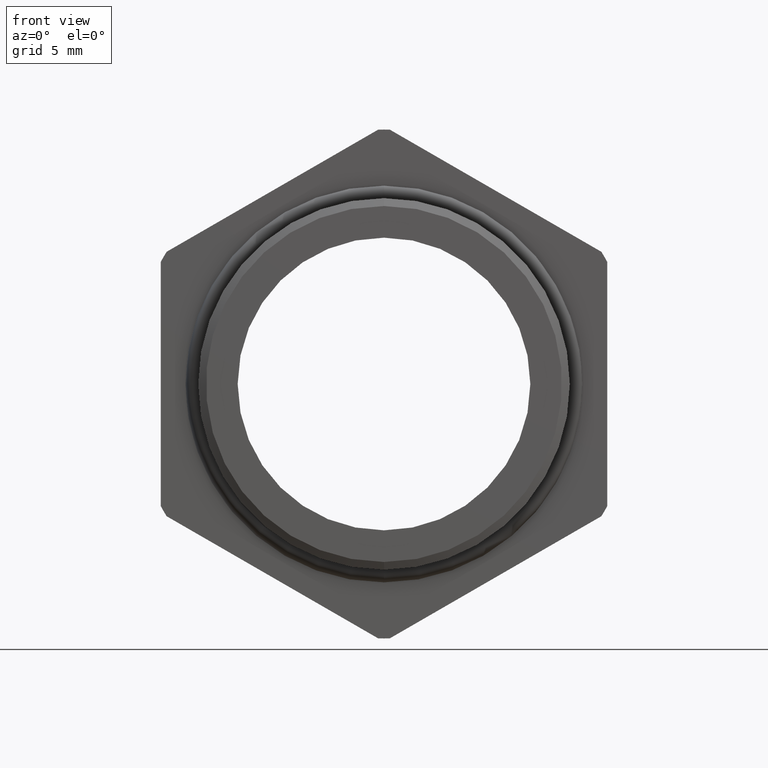
[diagram: clean part render]
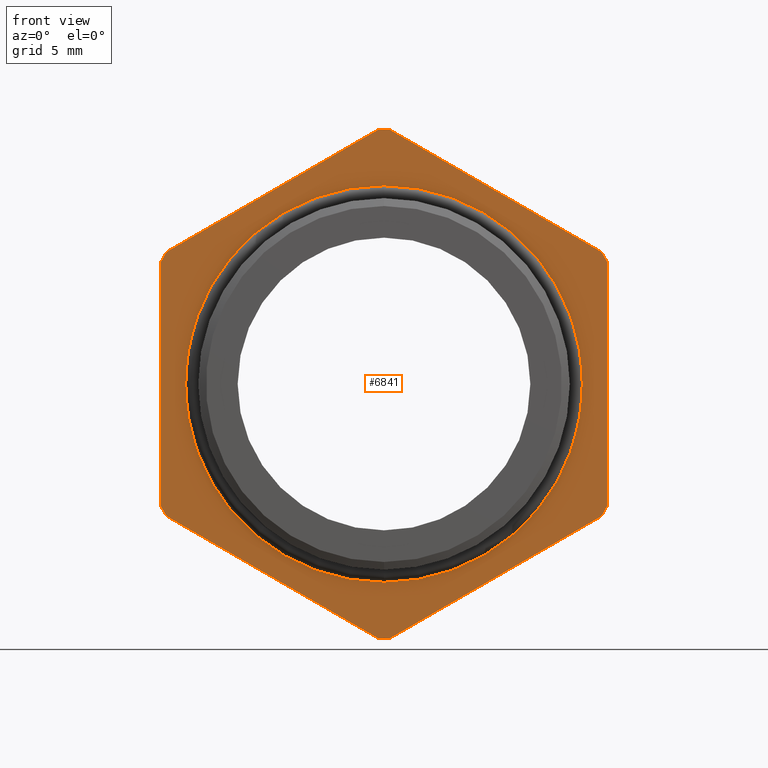
[diagram: same view with one face highlighted and labeled with its STEP entity id]
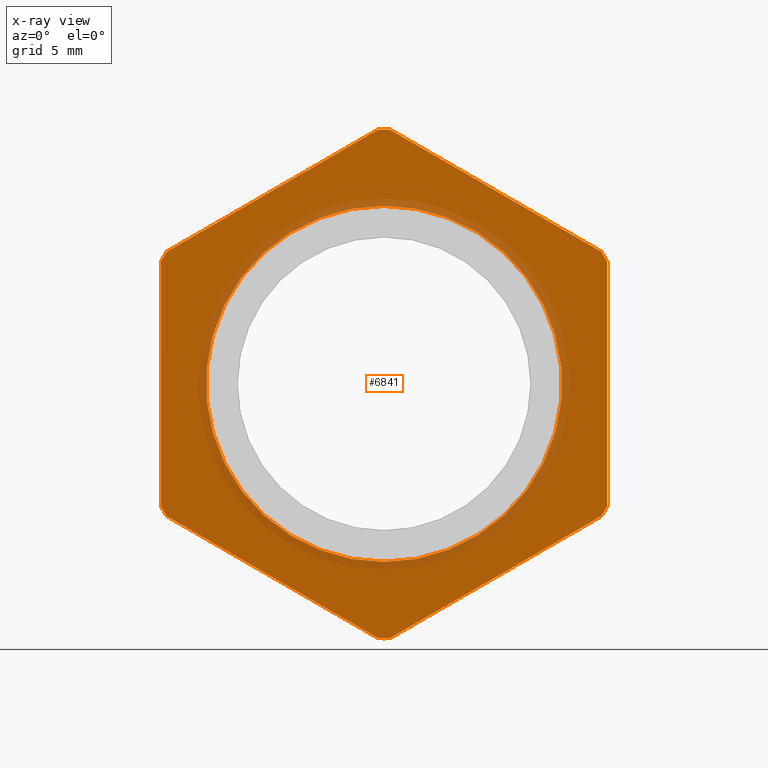
[diagram: x-ray of the same camera — body ghosted, the highlighted face saturated]
A machine part, front view. The second image highlights one B-rep face of the part: STEP entity #6841.
The next image is the same camera in x-ray: the body ghosted, the highlighted face saturated — about 12% of this face is hidden behind the body in this view.
In plain terms, the highlighted planar face has unit normal (0, -1, -0).
Its self-contained STEP definition (entity closure, byte-faithful):
#74 = VERTEX_POINT ( 'NONE', #1339 ) ;
#75 = EDGE_CURVE ( 'NONE', #6470, #74, #1400, .T. ) ;
#82 = VERTEX_POINT ( 'NONE', #1381 ) ;
#88 = VERTEX_POINT ( 'NONE', #1377 ) ;
#89 = EDGE_CURVE ( 'NONE', #6487, #88, #1371, .T. ) ;
#101 = VERTEX_POINT ( 'NONE', #1412 ) ;
#102 = EDGE_CURVE ( 'NONE', #82, #101, #1405, .T. ) ;
#117 = EDGE_CURVE ( 'NONE', #6682, #82, #1487, .T. ) ;
#124 = EDGE_CURVE ( 'NONE', #88, #6470, #1476, .T. ) ;
#654 = EDGE_CURVE ( 'NONE', #706, #707, #2544, .T. ) ;
#706 = VERTEX_POINT ( 'NONE', #2636 ) ;
#707 = VERTEX_POINT ( 'NONE', #2630 ) ;
#840 = EDGE_CURVE ( 'NONE', #101, #6487, #2840, .T. ) ;
#1339 = CARTESIAN_POINT ( 'NONE',  ( -0.3847399997329630200, 0.2275548905829479800, -0.2339769702459614800 ) ) ;
#1368 = DIRECTION ( 'NONE',  ( -0.0000000000000000000, -1.000000000000000000, -0.0000000000000000000 ) ) ;
#1369 = CARTESIAN_POINT ( 'NONE',  ( 0.0000000000000000000, 0.2275548905829479800, 0.0000000000000000000 ) ) ;
#1370 = AXIS2_PLACEMENT_3D ( 'NONE', #1369, #1368, #1429 ) ;
#1371 = CIRCLE ( 'NONE', #1370, 0.4502999999999999800 ) ;
#1377 = CARTESIAN_POINT ( 'NONE',  ( -0.3949999999999999600, 0.2275548905829479800, 0.2162061284977833100 ) ) ;
#1381 = CARTESIAN_POINT ( 'NONE',  ( 0.01026000026703743400, 0.2275548905829479800, 0.4501830987437449600 ) ) ;
#1396 = DIRECTION ( 'NONE',  ( 0.0000000000000000000, 0.0000000000000000000, -1.000000000000000000 ) ) ;
#1397 = DIRECTION ( 'NONE',  ( -0.0000000000000000000, -1.000000000000000000, -0.0000000000000000000 ) ) ;
#1398 = CARTESIAN_POINT ( 'NONE',  ( 0.0000000000000000000, 0.2275548905829479800, 0.0000000000000000000 ) ) ;
#1399 = AXIS2_PLACEMENT_3D ( 'NONE', #1398, #1397, #1396 ) ;
#1400 = CIRCLE ( 'NONE', #1399, 0.4502999999999999800 ) ;
#1402 = DIRECTION ( 'NONE',  ( -0.0000000000000000000, -1.000000000000000000, -0.0000000000000000000 ) ) ;
#1403 = CARTESIAN_POINT ( 'NONE',  ( 0.0000000000000000000, 0.2275548905829479800, 0.0000000000000000000 ) ) ;
#1404 = AXIS2_PLACEMENT_3D ( 'NONE', #1403, #1402, #1458 ) ;
#1405 = CIRCLE ( 'NONE', #1404, 0.4502999999999999800 ) ;
#1412 = CARTESIAN_POINT ( 'NONE',  ( -0.01026000026703719400, 0.2275548905829479800, 0.4501830987437449000 ) ) ;
#1429 = DIRECTION ( 'NONE',  ( 0.0000000000000000000, 0.0000000000000000000, -1.000000000000000000 ) ) ;
#1458 = DIRECTION ( 'NONE',  ( 0.0000000000000000000, 0.0000000000000000000, -1.000000000000000000 ) ) ;
#1467 = DIRECTION ( 'NONE',  ( 0.0000000000000000000, 0.0000000000000000000, -1.000000000000000000 ) ) ;
#1468 = VECTOR ( 'NONE', #1467, 39.37007874015748100 ) ;
#1469 = CARTESIAN_POINT ( 'NONE',  ( -0.3949999999999999600, 0.2275548905829479800, 0.0000000000000000000 ) ) ;
#1476 = LINE ( 'NONE', #1469, #1468 ) ;
#1484 = DIRECTION ( 'NONE',  ( -0.8660254037844386000, 0.0000000000000000000, 0.5000000000000002200 ) ) ;
#1485 = VECTOR ( 'NONE', #1484, 39.37007874015747400 ) ;
#1486 = CARTESIAN_POINT ( 'NONE',  ( 0.4337500000000000200, 0.2275548905829479800, 0.2056810333988042200 ) ) ;
#1487 = LINE ( 'NONE', #1486, #1485 ) ;
#1812 = EDGE_CURVE ( 'NONE', #74, #6740, #3591, .T. ) ;
#2540 = DIRECTION ( 'NONE',  ( 0.0000000000000000000, 0.0000000000000000000, -1.000000000000000000 ) ) ;
#2541 = DIRECTION ( 'NONE',  ( -0.0000000000000000000, -1.000000000000000000, -0.0000000000000000000 ) ) ;
#2542 = CARTESIAN_POINT ( 'NONE',  ( 0.0000000000000000000, 0.2275548905829479800, 0.0000000000000000000 ) ) ;
#2543 = AXIS2_PLACEMENT_3D ( 'NONE', #2542, #2541, #2540 ) ;
#2544 = CIRCLE ( 'NONE', #2543, 0.3150000000000000000 ) ;
#2630 = CARTESIAN_POINT ( 'NONE',  ( 3.857637417314162700E-017, 0.2275548905829479800, 0.3150000000000000000 ) ) ;
#2636 = CARTESIAN_POINT ( 'NONE',  ( 0.0000000000000000000, 0.2275548905829479800, -0.3150000000000000000 ) ) ;
#2840 = LINE ( 'NONE', #2899, #2898 ) ;
#2897 = DIRECTION ( 'NONE',  ( -0.8660254037844386000, 0.0000000000000000000, -0.4999999999999998300 ) ) ;
#2898 = VECTOR ( 'NONE', #2897, 39.37007874015748900 ) ;
#2899 = CARTESIAN_POINT ( 'NONE',  ( 0.03875000000000002700, 0.2275548905829479800, 0.4784790355909024400 ) ) ;
#3590 = CARTESIAN_POINT ( 'NONE',  ( 0.03874999999999989600, 0.2275548905829479800, -0.4784790355909022700 ) ) ;
#3591 = LINE ( 'NONE', #3590, #3631 ) ;
#3613 = CIRCLE ( 'NONE', #3645, 0.4502999999999999800 ) ;
#3630 = DIRECTION ( 'NONE',  ( 0.8660254037844386000, 0.0000000000000000000, -0.5000000000000002200 ) ) ;
#3631 = VECTOR ( 'NONE', #3630, 39.37007874015747400 ) ;
#3642 = DIRECTION ( 'NONE',  ( 0.0000000000000000000, 0.0000000000000000000, -1.000000000000000000 ) ) ;
#3643 = DIRECTION ( 'NONE',  ( -0.0000000000000000000, -1.000000000000000000, -0.0000000000000000000 ) ) ;
#3644 = CARTESIAN_POINT ( 'NONE',  ( 0.0000000000000000000, 0.2275548905829479800, 0.0000000000000000000 ) ) ;
#3645 = AXIS2_PLACEMENT_3D ( 'NONE', #3644, #3643, #3642 ) ;
#3659 = DIRECTION ( 'NONE',  ( -2.994746533912406200E-016, 0.0000000000000000000, 1.000000000000000000 ) ) ;
#3660 = VECTOR ( 'NONE', #3659, 39.37007874015748100 ) ;
#3661 = CARTESIAN_POINT ( 'NONE',  ( 0.3949999999999999600, 0.2275548905829479800, 2.395797227129924000E-017 ) ) ;
#3662 = LINE ( 'NONE', #3661, #3660 ) ;
#3674 = CARTESIAN_POINT ( 'NONE',  ( -0.3949999999999999600, 0.2275548905829479800, -0.2162061284977833100 ) ) ;
#3699 = CARTESIAN_POINT ( 'NONE',  ( -0.3847399997329628000, 0.2275548905829479800, 0.2339769702459618100 ) ) ;
#3707 = DIRECTION ( 'NONE',  ( 0.0000000000000000000, 0.0000000000000000000, -1.000000000000000000 ) ) ;
#3708 = DIRECTION ( 'NONE',  ( -0.0000000000000000000, -1.000000000000000000, -0.0000000000000000000 ) ) ;
#3709 = CARTESIAN_POINT ( 'NONE',  ( 0.0000000000000000000, 0.2275548905829479800, 0.0000000000000000000 ) ) ;
#3710 = AXIS2_PLACEMENT_3D ( 'NONE', #3709, #3708, #3707 ) ;
#3715 = CIRCLE ( 'NONE', #3710, 0.4502999999999999800 ) ;
#3751 = CARTESIAN_POINT ( 'NONE',  ( 0.01026000026703718400, 0.2275548905829479800, -0.4501830987437449000 ) ) ;
#3809 = DIRECTION ( 'NONE',  ( 0.8660254037844386000, 0.0000000000000000000, 0.4999999999999998300 ) ) ;
#3810 = VECTOR ( 'NONE', #3809, 39.37007874015748900 ) ;
#3811 = CARTESIAN_POINT ( 'NONE',  ( 0.4337499999999999700, 0.2275548905829479800, -0.2056810333988043100 ) ) ;
#3812 = LINE ( 'NONE', #3811, #3810 ) ;
#4050 = CARTESIAN_POINT ( 'NONE',  ( 0.0000000000000000000, 0.2275548905829479800, -0.4502999999999999800 ) ) ;
#4076 = CARTESIAN_POINT ( 'NONE',  ( 0.3949999999999999100, 0.2275548905829479800, 0.2162061284977834200 ) ) ;
#4077 = CARTESIAN_POINT ( 'NONE',  ( 0.3847399997329628000, 0.2275548905829479800, -0.2339769702459618100 ) ) ;
#4084 = CARTESIAN_POINT ( 'NONE',  ( 0.3950000000000000200, 0.2275548905829479800, -0.2162061284977832000 ) ) ;
#4090 = CARTESIAN_POINT ( 'NONE',  ( 0.3847399997329628600, 0.2275548905829479800, 0.2339769702459617900 ) ) ;
#4111 = DIRECTION ( 'NONE',  ( 0.0000000000000000000, 0.0000000000000000000, -1.000000000000000000 ) ) ;
#4112 = DIRECTION ( 'NONE',  ( -0.0000000000000000000, -1.000000000000000000, -0.0000000000000000000 ) ) ;
#4113 = CARTESIAN_POINT ( 'NONE',  ( 0.0000000000000000000, 0.2275548905829479800, 0.0000000000000000000 ) ) ;
#4114 = AXIS2_PLACEMENT_3D ( 'NONE', #4113, #4112, #4111 ) ;
#4115 = CIRCLE ( 'NONE', #4114, 0.4502999999999999800 ) ;
#4158 = CARTESIAN_POINT ( 'NONE',  ( 0.0000000000000000000, 0.2275548905829479800, 0.0000000000000000000 ) ) ;
#4159 = AXIS2_PLACEMENT_3D ( 'NONE', #4158, #4222, #4221 ) ;
#4160 = CIRCLE ( 'NONE', #4159, 0.4502999999999999800 ) ;
#4220 = CARTESIAN_POINT ( 'NONE',  ( -0.01026000026703716000, 0.2275548905829479800, -0.4501830987437449600 ) ) ;
#4221 = DIRECTION ( 'NONE',  ( 0.0000000000000000000, 0.0000000000000000000, -1.000000000000000000 ) ) ;
#4222 = DIRECTION ( 'NONE',  ( -0.0000000000000000000, -1.000000000000000000, -0.0000000000000000000 ) ) ;
#4386 = DIRECTION ( 'NONE',  ( 0.0000000000000000000, 0.0000000000000000000, -1.000000000000000000 ) ) ;
#4387 = DIRECTION ( 'NONE',  ( -0.0000000000000000000, -1.000000000000000000, -0.0000000000000000000 ) ) ;
#4388 = CARTESIAN_POINT ( 'NONE',  ( 0.0000000000000000000, 0.2275548905829479800, 0.0000000000000000000 ) ) ;
#4389 = AXIS2_PLACEMENT_3D ( 'NONE', #4388, #4387, #4386 ) ;
#4390 = CIRCLE ( 'NONE', #4389, 0.3150000000000000000 ) ;
#4401 = DIRECTION ( 'NONE',  ( 0.0000000000000000000, 0.0000000000000000000, -1.000000000000000000 ) ) ;
#4402 = DIRECTION ( 'NONE',  ( 0.0000000000000000000, -1.000000000000000000, -0.0000000000000000000 ) ) ;
#4403 = CARTESIAN_POINT ( 'NONE',  ( 0.3150000000000000000, 0.2275548905829479800, 0.0000000000000000000 ) ) ;
#4404 = AXIS2_PLACEMENT_3D ( 'NONE', #4403, #4402, #4401 ) ;
#4406 = PLANE ( 'NONE',  #4404 ) ;
#4407 = FACE_OUTER_BOUND ( 'NONE', #6845, .T. ) ;
#4411 = FACE_BOUND ( 'NONE', #6842, .T. ) ;
#6457 = EDGE_CURVE ( 'NONE', #6693, #6682, #3613, .T. ) ;
#6470 = VERTEX_POINT ( 'NONE', #3674 ) ;
#6476 = EDGE_CURVE ( 'NONE', #6687, #6693, #3662, .T. ) ;
#6481 = EDGE_CURVE ( 'NONE', #6667, #6493, #3715, .T. ) ;
#6487 = VERTEX_POINT ( 'NONE', #3699 ) ;
#6493 = VERTEX_POINT ( 'NONE', #3751 ) ;
#6533 = EDGE_CURVE ( 'NONE', #6493, #6692, #3812, .T. ) ;
#6667 = VERTEX_POINT ( 'NONE', #4050 ) ;
#6682 = VERTEX_POINT ( 'NONE', #4090 ) ;
#6687 = VERTEX_POINT ( 'NONE', #4084 ) ;
#6692 = VERTEX_POINT ( 'NONE', #4077 ) ;
#6693 = VERTEX_POINT ( 'NONE', #4076 ) ;
#6708 = EDGE_CURVE ( 'NONE', #6692, #6687, #4115, .T. ) ;
#6739 = EDGE_CURVE ( 'NONE', #6740, #6667, #4160, .T. ) ;
#6740 = VERTEX_POINT ( 'NONE', #4220 ) ;
#6841 = ADVANCED_FACE ( 'NONE', ( #4411, #4407 ), #4406, .T. ) ;
#6842 = EDGE_LOOP ( 'NONE', ( #6843, #6844 ) ) ;
#6843 = ORIENTED_EDGE ( 'NONE', *, *, #654, .F. ) ;
#6844 = ORIENTED_EDGE ( 'NONE', *, *, #6855, .F. ) ;
#6845 = EDGE_LOOP ( 'NONE', ( #6846, #6847, #6903, #6904, #6905, #6906, #6907, #6908, #6909, #6910, #6911, #6889, #6890 ) ) ;
#6846 = ORIENTED_EDGE ( 'NONE', *, *, #6708, .T. ) ;
#6847 = ORIENTED_EDGE ( 'NONE', *, *, #6476, .T. ) ;
#6855 = EDGE_CURVE ( 'NONE', #707, #706, #4390, .T. ) ;
#6889 = ORIENTED_EDGE ( 'NONE', *, *, #6481, .T. ) ;
#6890 = ORIENTED_EDGE ( 'NONE', *, *, #6533, .T. ) ;
#6903 = ORIENTED_EDGE ( 'NONE', *, *, #6457, .T. ) ;
#6904 = ORIENTED_EDGE ( 'NONE', *, *, #117, .T. ) ;
#6905 = ORIENTED_EDGE ( 'NONE', *, *, #102, .T. ) ;
#6906 = ORIENTED_EDGE ( 'NONE', *, *, #840, .T. ) ;
#6907 = ORIENTED_EDGE ( 'NONE', *, *, #89, .T. ) ;
#6908 = ORIENTED_EDGE ( 'NONE', *, *, #124, .T. ) ;
#6909 = ORIENTED_EDGE ( 'NONE', *, *, #75, .T. ) ;
#6910 = ORIENTED_EDGE ( 'NONE', *, *, #1812, .T. ) ;
#6911 = ORIENTED_EDGE ( 'NONE', *, *, #6739, .T. ) ;